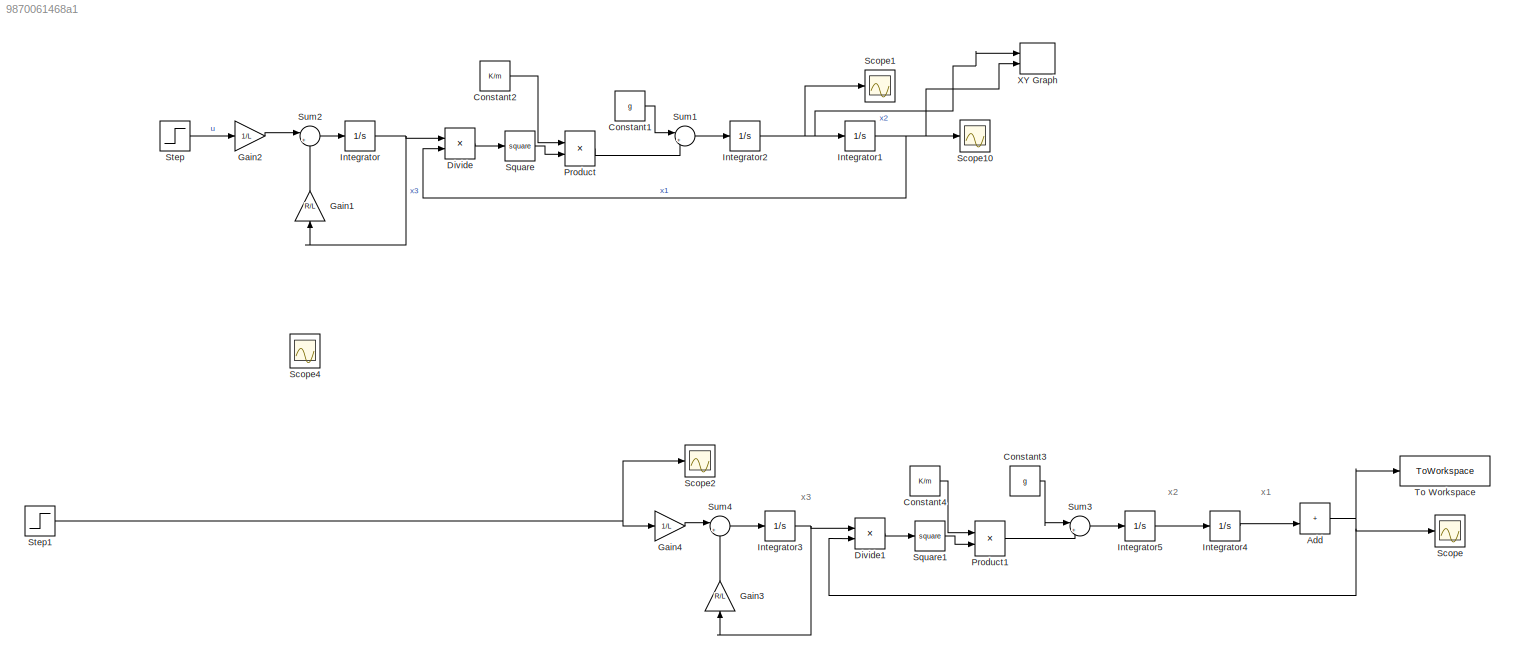
MODEL mdl_9870061468a1
KIND model
CONFIG AbsTol = auto
CONFIG EnableMultiTasking = off
CONFIG FixedStep = auto
CONFIG MaxStep = auto
CONFIG MinStep = auto
CONFIG RelTol = 1e-3
CONFIG SampleTimeConstraint = Unconstrained
CONFIG SolverName = VariableStepAuto
CONFIG StartTime = 0.0
CONFIG StopTime = 10
BLOCK [Sum] Add
  IconShape = rectangular
  Ports = [2, 1]
BLOCK [Constant] Constant1
  Value = g
BLOCK [Constant] Constant2
  Value = K/m
BLOCK [Constant] Constant3
  Value = g
BLOCK [Constant] Constant4
  Value = K/m
BLOCK [Product] Divide
  Inputs = */
  Ports = [2, 1]
BLOCK [Product] Divide1
  Inputs = */
  Ports = [2, 1]
BLOCK [Gain] Gain1
  Gain = R/L
  NameLocation = right
BLOCK [Gain] Gain2
  Gain = 1/L
BLOCK [Gain] Gain3
  Gain = R/L
  NameLocation = right
BLOCK [Gain] Gain4
  Gain = 1/L
BLOCK [Integrator] Integrator
  Ports = [1, 1]
BLOCK [Integrator] Integrator1
  InitialCondition = -0.025
  Ports = [1, 1]
BLOCK [Integrator] Integrator2
  Ports = [1, 1]
BLOCK [Integrator] Integrator3
  Ports = [1, 1]
BLOCK [Integrator] Integrator4
  InitialCondition = -0.025
  Ports = [1, 1]
BLOCK [Integrator] Integrator5
  Ports = [1, 1]
BLOCK [Product] Product
  Ports = [2, 1]
BLOCK [Product] Product1
  Ports = [2, 1]
BLOCK [Scope] Scope
  Floating = off
  NumInputPorts = 1
  Ports = [1]
  ScopeSpecificationString = Simulink.scopes.TimeScopeBlockCfg('CurrentConfiguration', extmgr.ConfigurationSet(extmgr.Configuration('Core','General UI',true,'FigureColor',[1 1 1]),extmgr.Configuration('Core','Source UI',true),extmgr.Configuration('Sources','WiredSimulink',true,'DataLoggingVariableName','ScopeData1'),extmgr.Configuration('Visuals','Time Domain',true,'SerializedDisplays',{struct('MinYLimReal','-0.03954','MaxYLi...<+1605ch>
BLOCK [Scope] Scope1
  Floating = off
  NumInputPorts = 1
  Ports = [1]
  ScopeSpecificationString = Simulink.scopes.TimeScopeBlockCfg('CurrentConfiguration', extmgr.ConfigurationSet(extmgr.Configuration('Core','General UI',true,'FigureColor',[1 1 1]),extmgr.Configuration('Core','Source UI',true),extmgr.Configuration('Sources','WiredSimulink',true,'DataLoggingVariableName','ScopeData1'),extmgr.Configuration('Visuals','Time Domain',true,'SerializedDisplays',{struct('MinYLimReal','-0.00795','MaxYLi...<+1582ch>
BLOCK [Scope] Scope10
  Floating = off
  NumInputPorts = 1
  Ports = [1]
  ScopeSpecificationString = Simulink.scopes.TimeScopeBlockCfg('CurrentConfiguration', extmgr.ConfigurationSet(extmgr.Configuration('Core','General UI',true,'FigureColor',[1 1 1]),extmgr.Configuration('Core','Source UI',true),extmgr.Configuration('Sources','WiredSimulink',true,'DataLoggingVariableName','ScopeData1'),extmgr.Configuration('Visuals','Time Domain',true,'SerializedDisplays',{struct('MinYLimReal','-0.00795','MaxYLi...<+1582ch>
BLOCK [Scope] Scope2
  Floating = off
  NumInputPorts = 1
  Ports = [1]
  ScopeSpecificationString = Simulink.scopes.TimeScopeBlockCfg('CurrentConfiguration', extmgr.ConfigurationSet(extmgr.Configuration('Core','General UI',true,'FigureColor',[1 1 1]),extmgr.Configuration('Core','Source UI',true),extmgr.Configuration('Sources','WiredSimulink',true,'DataLoggingVariableName','ScopeData2'),extmgr.Configuration('Visuals','Time Domain',true,'SerializedDisplays',{struct('MinYLimReal','-0.02501','MaxYLi...<+1601ch>
BLOCK [Scope] Scope4
  Floating = off
  NumInputPorts = 3
  Ports = [3]
  ScopeSpecificationString = Simulink.scopes.TimeScopeBlockCfg('CurrentConfiguration', extmgr.ConfigurationSet(extmgr.Configuration('Core','General UI',true,'FigureColor',[1 1 1]),extmgr.Configuration('Core','Source UI',true),extmgr.Configuration('Sources','WiredSimulink',true,'DataLoggingVariableName','ScopeData4'),extmgr.Configuration('Visuals','Time Domain',true,'SerializedDisplays',{struct('MinYLimReal','-0.38596','MaxYLi...<+1572ch>
BLOCK [Math] Square
  Operator = square
  Ports = [1, 1]
BLOCK [Math] Square1
  Operator = square
  Ports = [1, 1]
BLOCK [Step] Step
  After = 4.5
  SampleTime = 0
  Time = 0
BLOCK [Step] Step1
  After = 4.5
  SampleTime = 0
  Time = 0
BLOCK [Sum] Sum1
  Inputs = |+-
  Ports = [2, 1]
BLOCK [Sum] Sum2
  Inputs = |+-
  Ports = [2, 1]
BLOCK [Sum] Sum3
  Inputs = |+-
  Ports = [2, 1]
BLOCK [Sum] Sum4
  Inputs = |+-
  Ports = [2, 1]
BLOCK [ToWorkspace] To Workspace
  FixptAsFi = on
  MaxDataPoints = inf
  Ports = [1]
  SampleTime = -1
  SaveFormat = Structure With Time
  VariableName = outputdata
BLOCK [Record] XY Graph
  CompatibilityTag = XY
  FileSettingsInternal = {"entries":[{"content":{"excelSettings":{"content":{},"type":"Streamout.ExcelSettings"}},"type":"Streamout.FileSettingStorage","uuid":"6a1f47e0-ea87-4652-b21c-d77f1fd09c62"}],"packageUris":["http://schema.mathworks.com/mf0/streamout_blocks/R2020a"],"version":"1.0"}
  Layout = [1 1]
  Ports = [2]
  SignalsInternal = {"entries":[{"content":{"signals":[{"content":{"blockPath":["lev_sys/XY Graph"],"channel":[],"dimensions":[1],"domain":"lev_sys/XY Graph","lineColor":"#a2142f","plots":[1],"port":1,"sid":[""],"signalID":95,"signalName":"x2"},"type":"RecordBlkView.Signal","uuid":"e9d2a159-f77a-439f-ac0c-20a61756994d"},{"content":{"blockPath":["lev_sys/XY Graph"],"channel":[],"dimensions":[1],"domain":"lev_sys/XY Gr...<+345ch>
  VisualizationBindings = {"xyplotplugin":{"info":[{"series":[{"bindingParametersList":[{"parameter":"X-Axis","signalID":95,"signalName":"x2"},{"parameter":"Y-Axis","signalID":99,"signalName":"x1"}],"seriesID":7128}],"subplotID":1}]}}
ANNOTATION (root): x1
ANNOTATION (root): x2
ANNOTATION (root): x3
NET Add:1 -> Divide1:2, Scope:1, To Workspace:1
LINE Constant1:1 -> Sum1:1
LINE Constant2:1 -> Product:1
LINE Constant3:1 -> Sum3:1
LINE Constant4:1 -> Product1:1
LINE Divide1:1 -> Square1:1
LINE Divide:1 -> Square:1
LINE Gain1:1 -> Sum2:2
LINE Gain2:1 -> Sum2:1
LINE Gain3:1 -> Sum4:2
LINE Gain4:1 -> Sum4:1
NET Integrator1:1 -> Divide:2, Scope10:1, XY Graph:2
NET Integrator2:1 -> Integrator1:1, Scope1:1, XY Graph:1
NET Integrator3:1 -> Divide1:1, Gain3:1
LINE Integrator4:1 -> Add:2
LINE Integrator5:1 -> Integrator4:1
NET Integrator:1 -> Divide:1, Gain1:1
LINE Product1:1 -> Sum3:2
LINE Product:1 -> Sum1:2
LINE Square1:1 -> Product1:2
LINE Square:1 -> Product:2
NET Step1:1 -> Gain4:1, Scope2:1
LINE Step:1 -> Gain2:1
LINE Sum1:1 -> Integrator2:1
LINE Sum2:1 -> Integrator:1
LINE Sum3:1 -> Integrator5:1
LINE Sum4:1 -> Integrator3:1
note: NET lines group one-source signal fan-out (src -> all destinations, sorted); 1:1 wires keep LINE
